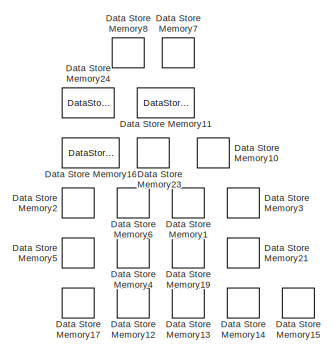
[diagram: root canvas - part 1/2, top right region]
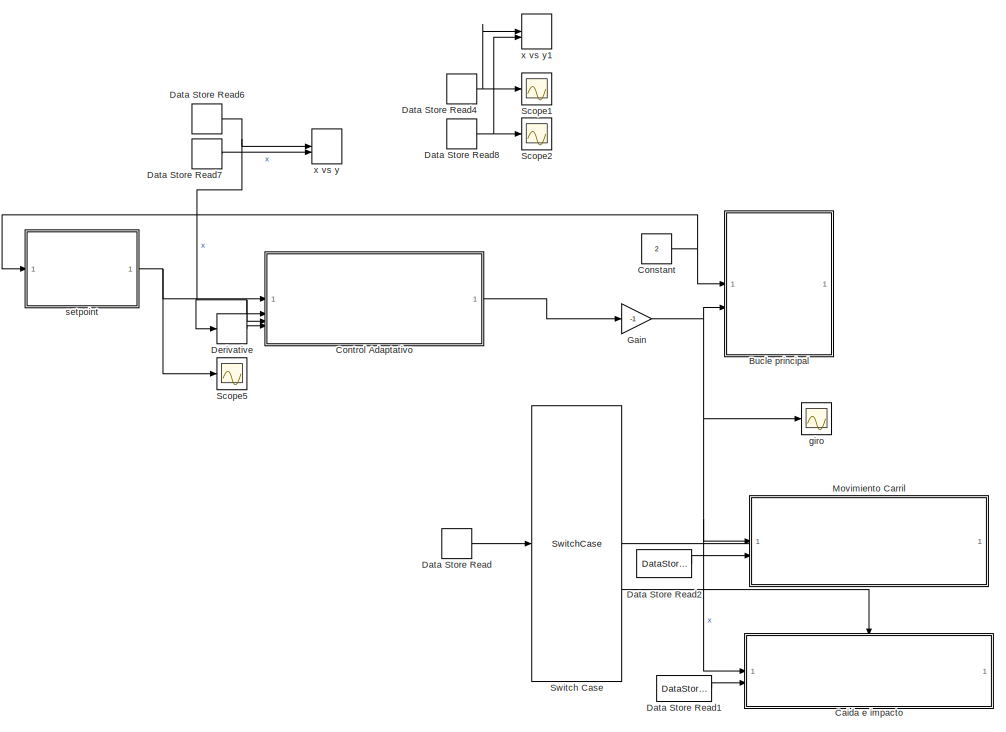
[diagram: root canvas - part 2/2, left side, full height]
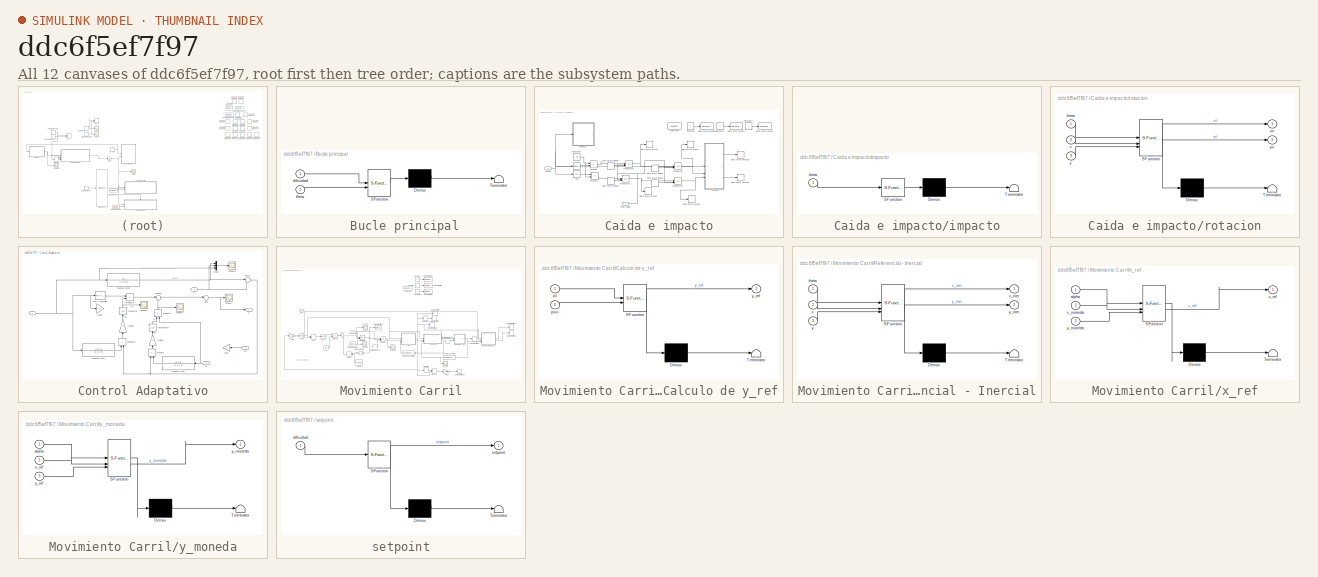
[diagram: thumbnail index - all 12 canvases of the model, root first then tree order]
MODEL slx_ddc6f5ef7f97
KIND model
CONFIG AbsTol = auto
CONFIG EnableMultiTasking = off
CONFIG FixedStep = auto
CONFIG MaxStep = 0.05
CONFIG MinStep = auto
CONFIG RelTol = auto
CONFIG SampleTimeConstraint = Unconstrained
CONFIG SolverName = VariableStepAuto
CONFIG StartTime = 0.0
CONFIG StopTime = 20
BLOCK [SubSystem]  Bucle principal
  ErrorFcn = Stateflow.Translate.translate
  PermitHierarchicalResolution = ExplicitOnly
  SFBlockType = MATLAB Function
  TreatAsAtomicUnit = on
BLOCK [Demux]  Bucle principal/ Demux 
  Outputs = 1
BLOCK [S-Function]  Bucle principal/ SFunction 
  EnableBusSupport = on
  FunctionName = sf_sfun
  PortCounts = [2 1]
  SFcnIsStateOwnerBlock = off
  SFunctionDeploymentMode = off
  Tag = Stateflow S-Function 3
BLOCK [Terminator]  Bucle principal/ Terminator 
BLOCK [Inport]  Bucle principal/dificultad
BLOCK [Inport]  Bucle principal/theta
  Port = 2
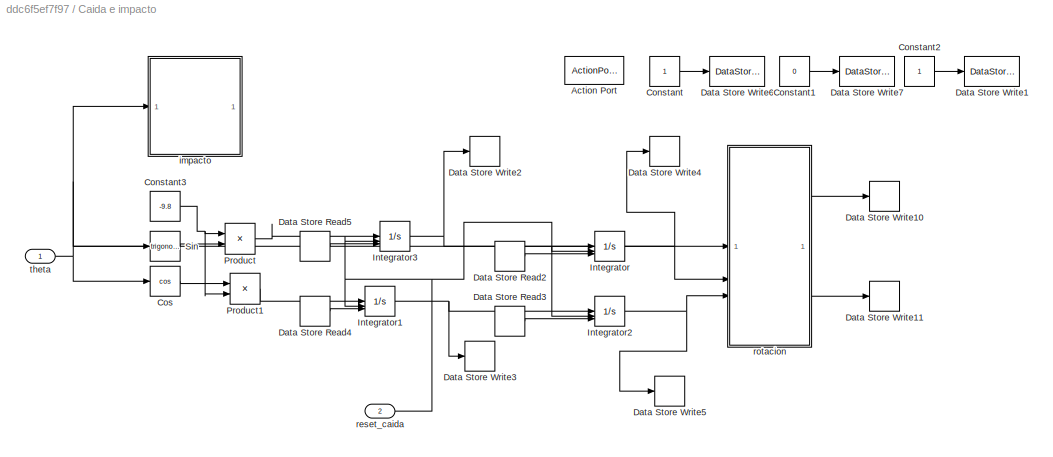
BLOCK [SubSystem] Caida e impacto
  TreatAsAtomicUnit = on
BLOCK [ActionPort] Caida e impacto/Action Port
  ActionPortLabel = case [ 2 ]:
BLOCK [Constant] Caida e impacto/Constant
BLOCK [Constant] Caida e impacto/Constant1
  Value = 0
BLOCK [Constant] Caida e impacto/Constant2
BLOCK [Constant] Caida e impacto/Constant3
  Value = -9.8
BLOCK [Trigonometry] Caida e impacto/Cos
  Operator = cos
BLOCK [DataStoreRead] Caida e impacto/Data Store Read2
  DataStoreName = x_caida
  IndexOptions = Index vector (dialog)
  Indices = 1
  OutputSizes = 1
BLOCK [DataStoreRead] Caida e impacto/Data Store Read3
  DataStoreName = y_caida
  IndexOptions = Index vector (dialog)
  Indices = 1
  OutputSizes = 1
BLOCK [DataStoreRead] Caida e impacto/Data Store Read4
  DataStoreName = dy_caida
  IndexOptions = Index vector (dialog)
  Indices = 1
  OutputSizes = 1
BLOCK [DataStoreRead] Caida e impacto/Data Store Read5
  DataStoreName = dx_caida
  IndexOptions = Index vector (dialog)
  Indices = 1
  OutputSizes = 1
BLOCK [DataStoreWrite] Caida e impacto/Data Store Write1
  DataStoreName = flag_caida
  IndexOptions = Index vector (dialog)
  Indices = 1
  OutputSizes = 1
BLOCK [DataStoreWrite] Caida e impacto/Data Store Write10
  DataStoreName = xo
  IndexOptions = Index vector (dialog)
  Indices = 1
  OutputSizes = 1
BLOCK [DataStoreWrite] Caida e impacto/Data Store Write11
  DataStoreName = yo
  IndexOptions = Index vector (dialog)
  Indices = 1
  OutputSizes = 1
BLOCK [DataStoreWrite] Caida e impacto/Data Store Write2
  DataStoreName = dx
  IndexOptions = Index vector (dialog)
  Indices = 1
  OutputSizes = 1
BLOCK [DataStoreWrite] Caida e impacto/Data Store Write3
  DataStoreName = dy
  IndexOptions = Index vector (dialog)
  Indices = 1
  OutputSizes = 1
BLOCK [DataStoreWrite] Caida e impacto/Data Store Write4
  DataStoreName = x
  IndexOptions = Index vector (dialog)
  Indices = 1
  OutputSizes = 1
BLOCK [DataStoreWrite] Caida e impacto/Data Store Write5
  DataStoreName = y
  IndexOptions = Index vector (dialog)
  Indices = 1
  OutputSizes = 1
BLOCK [DataStoreWrite] Caida e impacto/Data Store Write6
  DataStoreName = reset_caida
  IndexOptions = Index vector (dialog)
  Indices = 1
  OutputSizes = 1
BLOCK [DataStoreWrite] Caida e impacto/Data Store Write7
  DataStoreName = reset_carril
  IndexOptions = Index vector (dialog)
  Indices = 1
  OutputSizes = 1
BLOCK [Integrator] Caida e impacto/Integrator
  ExternalReset = falling
  InitialConditionSource = external
BLOCK [Integrator] Caida e impacto/Integrator1
  ExternalReset = falling
  InitialConditionSource = external
BLOCK [Integrator] Caida e impacto/Integrator2
  ExternalReset = falling
  InitialConditionSource = external
BLOCK [Integrator] Caida e impacto/Integrator3
  ExternalReset = falling
  InitialConditionSource = external
BLOCK [Product] Caida e impacto/Product
BLOCK [Product] Caida e impacto/Product1
BLOCK [Trigonometry] Caida e impacto/Sin
  NameLocation = left
BLOCK [SubSystem] Caida e impacto/impacto
  ErrorFcn = Stateflow.Translate.translate
  PermitHierarchicalResolution = ExplicitOnly
  SFBlockType = MATLAB Function
  TreatAsAtomicUnit = on
BLOCK [Demux] Caida e impacto/impacto/ Demux 
  Outputs = 1
BLOCK [S-Function] Caida e impacto/impacto/ SFunction 
  EnableBusSupport = on
  FunctionName = sf_sfun
  PortCounts = [1 1]
  SFcnIsStateOwnerBlock = off
  SFunctionDeploymentMode = off
  Tag = Stateflow S-Function 6
BLOCK [Terminator] Caida e impacto/impacto/ Terminator 
BLOCK [Inport] Caida e impacto/impacto/theta
BLOCK [Inport] Caida e impacto/reset_caida
  Port = 2
BLOCK [SubSystem] Caida e impacto/rotacion
  ErrorFcn = Stateflow.Translate.translate
  PermitHierarchicalResolution = ExplicitOnly
  SFBlockType = MATLAB Function
  TreatAsAtomicUnit = on
BLOCK [Demux] Caida e impacto/rotacion/ Demux 
  Outputs = 1
BLOCK [S-Function] Caida e impacto/rotacion/ SFunction 
  EnableBusSupport = on
  FunctionName = sf_sfun
  PortCounts = [3 3]
  SFcnIsStateOwnerBlock = off
  SFunctionDeploymentMode = off
  Tag = Stateflow S-Function 7
BLOCK [Terminator] Caida e impacto/rotacion/ Terminator 
BLOCK [Inport] Caida e impacto/rotacion/theta
BLOCK [Inport] Caida e impacto/rotacion/x
  Port = 2
BLOCK [Outport] Caida e impacto/rotacion/xo
BLOCK [Inport] Caida e impacto/rotacion/y
  Port = 3
BLOCK [Outport] Caida e impacto/rotacion/yo
  Port = 2
BLOCK [Inport] Caida e impacto/theta
BLOCK [Constant] Constant
  Value = 2
BLOCK [SubSystem] Control Adaptativo
BLOCK [Gain] Control Adaptativo/Gain
  NameLocation = top
BLOCK [Gain] Control Adaptativo/Gain1
BLOCK [Gain] Control Adaptativo/Gain16
  Gain = -1
  NameLocation = right
BLOCK [Gain] Control Adaptativo/Gain17
  NameLocation = right
BLOCK [Inport] Control Adaptativo/In4
  NameLocation = top
  Port = 4
BLOCK [Integrator] Control Adaptativo/Integrator
  InitialCondition = 1
  NameLocation = right
BLOCK [Integrator] Control Adaptativo/Integrator4
  InitialCondition = 1
  NameLocation = right
BLOCK [Mux] Control Adaptativo/Mux5
  DisplayOption = bar
  Inputs = 3
BLOCK [Reference] Control Adaptativo/PID Controller  REF=slpidlib/PID Controller
  LibrarySourceBlock = simulink/Continuous/PID Controller
  SourceBlock = slpidlib/PID Controller
  SourceType = PID 1dof
BLOCK [Product] Control Adaptativo/Product
  NameLocation = right
BLOCK [Product] Control Adaptativo/Product1
  NameLocation = right
BLOCK [Product] Control Adaptativo/Product2
  NameLocation = right
BLOCK [Product] Control Adaptativo/Product3
BLOCK [Scope] Control Adaptativo/Scope21
  Floating = off
  NumInputPorts = 1
  ScopeSpecificationString = Simulink.scopes.TimeScopeBlockCfg('CurrentConfiguration', extmgr.ConfigurationSet(extmgr.Configuration('Core','General UI',true),extmgr.Configuration('Core','Source UI',true),extmgr.Configuration('Sources','WiredSimulink',true,'DataLoggingVariableName','ScopeData5'),extmgr.Configuration('Visuals','Time Domain',true,'SerializedDisplays',{struct('MinYLimReal','0.99977','MaxYLimReal','1.00207','YLabe...<+1407ch>
BLOCK [Scope] Control Adaptativo/Scope22
  Floating = off
  NumInputPorts = 1
  ScopeSpecificationString = Simulink.scopes.TimeScopeBlockCfg('CurrentConfiguration', extmgr.ConfigurationSet(extmgr.Configuration('Core','General UI',true),extmgr.Configuration('Core','Source UI',true),extmgr.Configuration('Sources','WiredSimulink',true,'DataLoggingVariableName','ScopeData6'),extmgr.Configuration('Visuals','Time Domain',true,'SerializedDisplays',{struct('MinYLimReal','-0.16882','MaxYLimReal','0.26609','YLab...<+1434ch>
BLOCK [Scope] Control Adaptativo/Scope34
  Floating = off
  NumInputPorts = 1
  ScopeSpecificationString = Simulink.scopes.TimeScopeBlockCfg('CurrentConfiguration', extmgr.ConfigurationSet(extmgr.Configuration('Core','General UI',true),extmgr.Configuration('Core','Source UI',true),extmgr.Configuration('Sources','WiredSimulink',true,'DataLoggingVariableName','ScopeData18'),extmgr.Configuration('Visuals','Time Domain',true,'SerializedDisplays',{struct('MinYLimReal','-0.50801','MaxYLimReal','0.51105','YLa...<+1520ch>
BLOCK [Scope] Control Adaptativo/Scope4
  Floating = off
  NumInputPorts = 1
  ScopeSpecificationString = Simulink.scopes.TimeScopeBlockCfg('CurrentConfiguration', extmgr.ConfigurationSet(extmgr.Configuration('Core','General UI',true),extmgr.Configuration('Core','Source UI',true),extmgr.Configuration('Sources','WiredSimulink',true,'DataLoggingVariableName','ScopeData2'),extmgr.Configuration('Visuals','Time Domain',true,'SerializedDisplays',{struct('MinYLimReal','-0.31289','MaxYLimReal','0.22232','YLab...<+1442ch>
BLOCK [Sum] Control Adaptativo/Sum
  Inputs = |+-
BLOCK [Sum] Control Adaptativo/Sum2
  Inputs = |-+
BLOCK [Sum] Control Adaptativo/Sum20
  Inputs = |+-
BLOCK [TransferFcn] Control Adaptativo/Transfer Fcn1
  Denominator = [1 3.2 4]
  Numerator = [3.2 4]
BLOCK [TransferFcn] Control Adaptativo/Transfer Fcn2
  Denominator = [1 3.2 4]
  NameLocation = top
  Numerator = [3.2 4]
BLOCK [TransferFcn] Control Adaptativo/Transfer Fcn3
  Denominator = [1 3.2 4]
  Numerator = [4]
BLOCK [Outport] Control Adaptativo/k
BLOCK [Inport] Control Adaptativo/r
BLOCK [Inport] Control Adaptativo/x
  Port = 2
BLOCK [Inport] Control Adaptativo/x1
  NameLocation = top
  Port = 3
BLOCK [DataStoreMemory] Data Store Memory1
  DataStoreName = dx
  OutDataTypeStr = double
  ReadBeforeWriteMsg = warning
  ShowAdditionalParam = off
  SignalType = real
  WriteAfterReadMsg = warning
  WriteAfterWriteMsg = warning
BLOCK [DataStoreMemory] Data Store Memory10
  DataStoreName = y_impacto
  OutDataTypeStr = double
  ReadBeforeWriteMsg = warning
  ShowAdditionalParam = off
  SignalType = real
  WriteAfterReadMsg = warning
  WriteAfterWriteMsg = warning
BLOCK [DataStoreMemory] Data Store Memory11
  DataStoreName = reset_caida
  OutDataTypeStr = double
  ReadBeforeWriteMsg = warning
  ShowAdditionalParam = off
  SignalType = real
  WriteAfterReadMsg = warning
  WriteAfterWriteMsg = warning
BLOCK [DataStoreMemory] Data Store Memory12
  DataStoreName = x_caida
  OutDataTypeStr = double
  ReadBeforeWriteMsg = warning
  ShowAdditionalParam = off
  SignalType = real
  WriteAfterReadMsg = warning
  WriteAfterWriteMsg = warning
BLOCK [DataStoreMemory] Data Store Memory13
  DataStoreName = y_caida
  OutDataTypeStr = double
  ReadBeforeWriteMsg = warning
  ShowAdditionalParam = off
  SignalType = real
  WriteAfterReadMsg = warning
  WriteAfterWriteMsg = warning
BLOCK [DataStoreMemory] Data Store Memory14
  DataStoreName = dx_caida
  OutDataTypeStr = double
  ReadBeforeWriteMsg = warning
  ShowAdditionalParam = off
  SignalType = real
  WriteAfterReadMsg = warning
  WriteAfterWriteMsg = warning
BLOCK [DataStoreMemory] Data Store Memory15
  DataStoreName = dy_caida
  OutDataTypeStr = double
  ReadBeforeWriteMsg = warning
  ShowAdditionalParam = off
  SignalType = real
  WriteAfterReadMsg = warning
  WriteAfterWriteMsg = warning
BLOCK [DataStoreMemory] Data Store Memory16
  DataStoreName = reset_carril
  OutDataTypeStr = double
  ReadBeforeWriteMsg = warning
  ShowAdditionalParam = off
  SignalType = real
  WriteAfterReadMsg = warning
  WriteAfterWriteMsg = warning
BLOCK [DataStoreMemory] Data Store Memory17
  DataStoreName = x_carril
  InitialValue = -0.11
  OutDataTypeStr = double
  ReadBeforeWriteMsg = warning
  ShowAdditionalParam = off
  SignalType = real
  WriteAfterReadMsg = warning
  WriteAfterWriteMsg = warning
BLOCK [DataStoreMemory] Data Store Memory19
  DataStoreName = dx_carril
  OutDataTypeStr = double
  ReadBeforeWriteMsg = warning
  ShowAdditionalParam = off
  SignalType = real
  WriteAfterReadMsg = warning
  WriteAfterWriteMsg = warning
BLOCK [DataStoreMemory] Data Store Memory2
  DataStoreName = x
  InitialValue = -0.11
  OutDataTypeStr = double
  ReadBeforeWriteMsg = warning
  ShowAdditionalParam = off
  SignalType = real
  WriteAfterReadMsg = warning
  WriteAfterWriteMsg = warning
BLOCK [DataStoreMemory] Data Store Memory21
  DataStoreName = dy_carril
  OutDataTypeStr = double
  ReadBeforeWriteMsg = warning
  ShowAdditionalParam = off
  SignalType = real
  WriteAfterReadMsg = warning
  WriteAfterWriteMsg = warning
BLOCK [DataStoreMemory] Data Store Memory23
  DataStoreName = x_impacto
  OutDataTypeStr = double
  ReadBeforeWriteMsg = warning
  ShowAdditionalParam = off
  SignalType = real
  WriteAfterReadMsg = warning
  WriteAfterWriteMsg = warning
BLOCK [DataStoreMemory] Data Store Memory24
  DataStoreName = flag_caida
  OutDataTypeStr = double
  ReadBeforeWriteMsg = warning
  ShowAdditionalParam = off
  SignalType = real
  WriteAfterReadMsg = warning
  WriteAfterWriteMsg = warning
BLOCK [DataStoreMemory] Data Store Memory3
  DataStoreName = dy
  OutDataTypeStr = double
  ReadBeforeWriteMsg = warning
  ShowAdditionalParam = off
  SignalType = real
  WriteAfterReadMsg = warning
  WriteAfterWriteMsg = warning
BLOCK [DataStoreMemory] Data Store Memory4
  DataStoreName = yo
  InitialValue = 0.1092
  OutDataTypeStr = double
  ReadBeforeWriteMsg = warning
  ShowAdditionalParam = off
  SignalType = real
  WriteAfterReadMsg = warning
  WriteAfterWriteMsg = warning
BLOCK [DataStoreMemory] Data Store Memory5
  DataStoreName = xo
  InitialValue = -0.1
  OutDataTypeStr = double
  ReadBeforeWriteMsg = warning
  ShowAdditionalParam = off
  SignalType = real
  WriteAfterReadMsg = warning
  WriteAfterWriteMsg = warning
BLOCK [DataStoreMemory] Data Store Memory6
  DataStoreName = y
  InitialValue = 0.106
  OutDataTypeStr = double
  ReadBeforeWriteMsg = warning
  ShowAdditionalParam = off
  SignalType = real
  WriteAfterReadMsg = warning
  WriteAfterWriteMsg = warning
BLOCK [DataStoreMemory] Data Store Memory7
  DataStoreName = modo
  InitialValue = 1
  OutDataTypeStr = double
  ReadBeforeWriteMsg = warning
  ShowAdditionalParam = off
  SignalType = real
  WriteAfterReadMsg = warning
  WriteAfterWriteMsg = warning
BLOCK [DataStoreMemory] Data Store Memory8
  DataStoreName = carril
  InitialValue = 1
  OutDataTypeStr = double
  ReadBeforeWriteMsg = warning
  ShowAdditionalParam = off
  SignalType = real
  WriteAfterReadMsg = warning
  WriteAfterWriteMsg = warning
BLOCK [DataStoreRead] Data Store Read
  DataStoreName = modo
  IndexOptions = Index vector (dialog)
  Indices = 1
  OutputSizes = 1
BLOCK [DataStoreRead] Data Store Read1
  DataStoreName = reset_caida
  IndexOptions = Index vector (dialog)
  Indices = 1
  OutputSizes = 1
BLOCK [DataStoreRead] Data Store Read2
  DataStoreName = reset_carril
  IndexOptions = Index vector (dialog)
  Indices = 1
  OutputSizes = 1
BLOCK [DataStoreRead] Data Store Read4
  DataStoreName = xo
  IndexOptions = Index vector (dialog)
  Indices = 1
  OutputSizes = 1
BLOCK [DataStoreRead] Data Store Read6
  DataStoreName = x
  IndexOptions = Index vector (dialog)
  Indices = 1
  OutputSizes = 1
BLOCK [DataStoreRead] Data Store Read7
  DataStoreName = y
  IndexOptions = Index vector (dialog)
  Indices = 1
  OutputSizes = 1
BLOCK [DataStoreRead] Data Store Read8
  DataStoreName = yo
  IndexOptions = Index vector (dialog)
  Indices = 1
  OutputSizes = 1
BLOCK [Derivative] Derivative
BLOCK [Gain] Gain
  Gain = -1
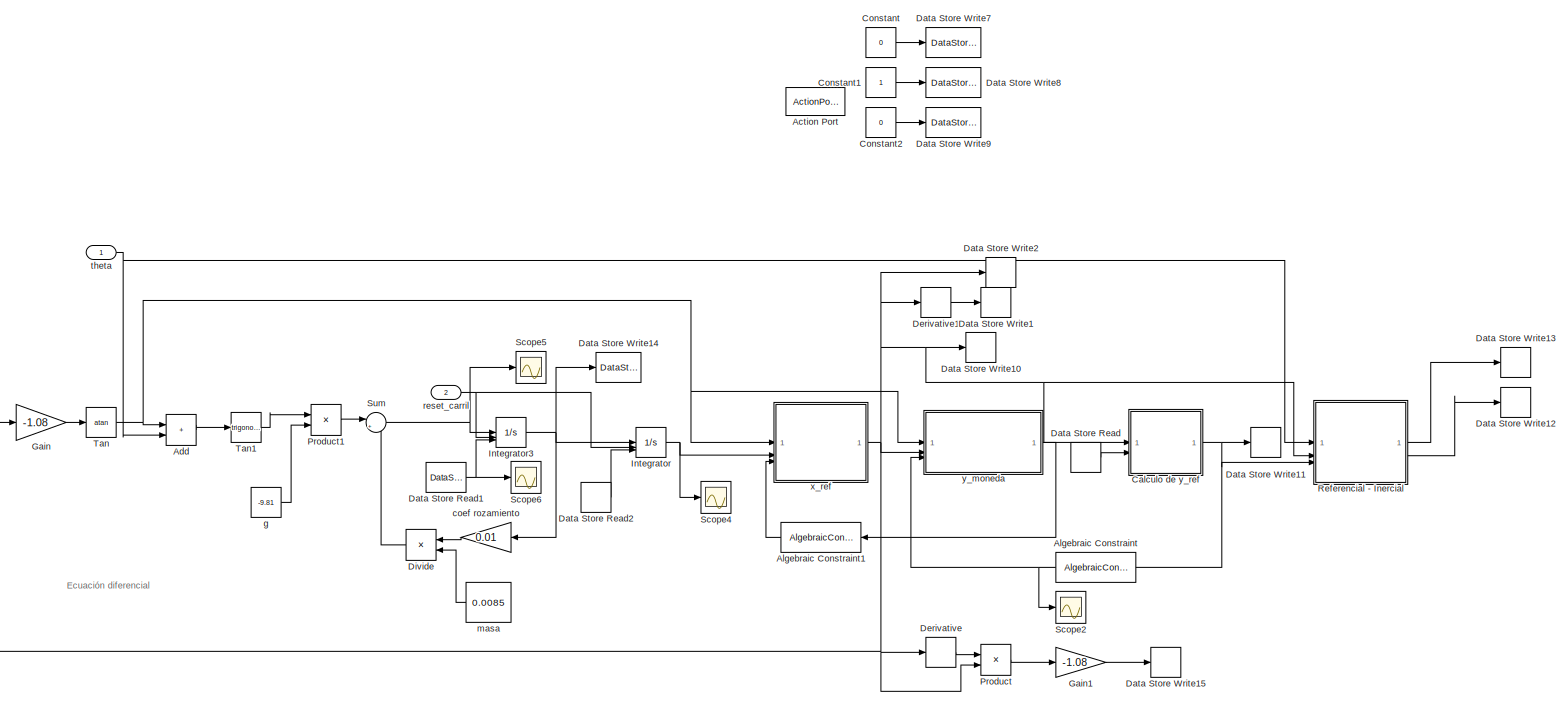
[diagram: Movimiento Carril - part 1/1, most of the canvas]
BLOCK [SubSystem] Movimiento Carril
  TreatAsAtomicUnit = on
BLOCK [ActionPort] Movimiento Carril/Action Port
  ActionPortLabel = case [ 1 ]:
BLOCK [Sum] Movimiento Carril/Add
  IconShape = rectangular
BLOCK [AlgebraicConstraint] Movimiento Carril/Algebraic Constraint
  Constraint = f(z) = z
  NameLocation = top
BLOCK [AlgebraicConstraint] Movimiento Carril/Algebraic Constraint1
  Constraint = f(z) = z
  NameLocation = top
BLOCK [SubSystem] Movimiento Carril/Calculo de y_ref
  ErrorFcn = Stateflow.Translate.translate
  PermitHierarchicalResolution = ExplicitOnly
  SFBlockType = MATLAB Function
  TreatAsAtomicUnit = on
BLOCK [Demux] Movimiento Carril/Calculo de y_ref/ Demux 
  Outputs = 1
BLOCK [S-Function] Movimiento Carril/Calculo de y_ref/ SFunction 
  EnableBusSupport = on
  FunctionName = sf_sfun
  PortCounts = [2 2]
  SFcnIsStateOwnerBlock = off
  SFunctionDeploymentMode = off
  Tag = Stateflow S-Function 8
BLOCK [Terminator] Movimiento Carril/Calculo de y_ref/ Terminator 
BLOCK [Inport] Movimiento Carril/Calculo de y_ref/piso
  Port = 2
BLOCK [Inport] Movimiento Carril/Calculo de y_ref/x0
BLOCK [Outport] Movimiento Carril/Calculo de y_ref/y_ref
BLOCK [Constant] Movimiento Carril/Constant
  Value = 0
BLOCK [Constant] Movimiento Carril/Constant1
BLOCK [Constant] Movimiento Carril/Constant2
  Value = 0
BLOCK [DataStoreRead] Movimiento Carril/Data Store Read
  DataStoreName = carril
  IndexOptions = Index vector (dialog)
  Indices = 1
  OutputSizes = 1
BLOCK [DataStoreRead] Movimiento Carril/Data Store Read1
  DataStoreName = dx_carril
  IndexOptions = Index vector (dialog)
  Indices = 1
  OutputSizes = 1
BLOCK [DataStoreRead] Movimiento Carril/Data Store Read2
  DataStoreName = x_carril
  IndexOptions = Index vector (dialog)
  Indices = 1
  OutputSizes = 1
BLOCK [DataStoreWrite] Movimiento Carril/Data Store Write1
  DataStoreName = dx_carril
  IndexOptions = Index vector (dialog)
  Indices = 1
  OutputSizes = 1
BLOCK [DataStoreWrite] Movimiento Carril/Data Store Write10
  DataStoreName = x
  IndexOptions = Index vector (dialog)
  Indices = 1
  OutputSizes = 1
BLOCK [DataStoreWrite] Movimiento Carril/Data Store Write11
  DataStoreName = y
  IndexOptions = Index vector (dialog)
  Indices = 1
  OutputSizes = 1
BLOCK [DataStoreWrite] Movimiento Carril/Data Store Write12
  DataStoreName = yo
  IndexOptions = Index vector (dialog)
  Indices = 1
  OutputSizes = 1
BLOCK [DataStoreWrite] Movimiento Carril/Data Store Write13
  DataStoreName = xo
  IndexOptions = Index vector (dialog)
  Indices = 1
  OutputSizes = 1
BLOCK [DataStoreWrite] Movimiento Carril/Data Store Write14
  DataStoreName = dx
  IndexOptions = Index vector (dialog)
  Indices = 1
  OutputSizes = 1
BLOCK [DataStoreWrite] Movimiento Carril/Data Store Write15
  DataStoreName = dy
  IndexOptions = Index vector (dialog)
  Indices = 1
  OutputSizes = 1
BLOCK [DataStoreWrite] Movimiento Carril/Data Store Write2
  DataStoreName = x_carril
  IndexOptions = Index vector (dialog)
  Indices = 1
  OutputSizes = 1
BLOCK [DataStoreWrite] Movimiento Carril/Data Store Write7
  DataStoreName = reset_caida
  IndexOptions = Index vector (dialog)
  Indices = 1
  OutputSizes = 1
BLOCK [DataStoreWrite] Movimiento Carril/Data Store Write8
  DataStoreName = reset_carril
  IndexOptions = Index vector (dialog)
  Indices = 1
  OutputSizes = 1
BLOCK [DataStoreWrite] Movimiento Carril/Data Store Write9
  DataStoreName = flag_caida
  IndexOptions = Index vector (dialog)
  Indices = 1
  OutputSizes = 1
BLOCK [Derivative] Movimiento Carril/Derivative
BLOCK [Derivative] Movimiento Carril/Derivative1
BLOCK [Product] Movimiento Carril/Divide
  Inputs = */
  NameLocation = top
BLOCK [Gain] Movimiento Carril/Gain
  Gain = -1.08
BLOCK [Gain] Movimiento Carril/Gain1
  Gain = -1.08
BLOCK [Integrator] Movimiento Carril/Integrator
  ExternalReset = falling
  InitialConditionSource = external
BLOCK [Integrator] Movimiento Carril/Integrator3
  ExternalReset = falling
  InitialConditionSource = external
BLOCK [Product] Movimiento Carril/Product
BLOCK [Product] Movimiento Carril/Product1
BLOCK [SubSystem] Movimiento Carril/Referencial - Inercial
  ErrorFcn = Stateflow.Translate.translate
  PermitHierarchicalResolution = ExplicitOnly
  SFBlockType = MATLAB Function
  TreatAsAtomicUnit = on
BLOCK [Demux] Movimiento Carril/Referencial - Inercial/ Demux 
  Outputs = 1
BLOCK [S-Function] Movimiento Carril/Referencial - Inercial/ SFunction 
  EnableBusSupport = on
  FunctionName = sf_sfun
  PortCounts = [3 3]
  SFcnIsStateOwnerBlock = off
  SFunctionDeploymentMode = off
  Tag = Stateflow S-Function 10
BLOCK [Terminator] Movimiento Carril/Referencial - Inercial/ Terminator 
BLOCK [Inport] Movimiento Carril/Referencial - Inercial/theta
BLOCK [Inport] Movimiento Carril/Referencial - Inercial/x
  Port = 2
BLOCK [Outport] Movimiento Carril/Referencial - Inercial/x_iner
BLOCK [Inport] Movimiento Carril/Referencial - Inercial/y
  Port = 3
BLOCK [Outport] Movimiento Carril/Referencial - Inercial/y_iner
  Port = 2
BLOCK [Scope] Movimiento Carril/Scope2
  Floating = off
  NumInputPorts = 1
  ScopeSpecificationString = Simulink.scopes.TimeScopeBlockCfg('CurrentConfiguration', extmgr.ConfigurationSet(extmgr.Configuration('Core','General UI',true),extmgr.Configuration('Core','Source UI',true),extmgr.Configuration('Sources','WiredSimulink',true,'DataLoggingVariableName','ScopeData5'),extmgr.Configuration('Visuals','Time Domain',true,'SerializedDisplays',{struct('MinYLimReal','0.03829','MaxYLimReal','0.12275','YLabe...<+1429ch>
BLOCK [Scope] Movimiento Carril/Scope4
  Floating = off
  NumInputPorts = 1
  ScopeSpecificationString = Simulink.scopes.TimeScopeBlockCfg('CurrentConfiguration', extmgr.ConfigurationSet(extmgr.Configuration('Core','General UI',true),extmgr.Configuration('Core','Source UI',true),extmgr.Configuration('Sources','WiredSimulink',true,'DataLoggingVariableName','ScopeData7'),extmgr.Configuration('Visuals','Time Domain',true,'SerializedDisplays',{struct('MinYLimReal','-0.16846','MaxYLimReal','0.19367','YLab...<+1421ch>
BLOCK [Scope] Movimiento Carril/Scope5
  Floating = off
  NumInputPorts = 1
  ScopeSpecificationString = Simulink.scopes.TimeScopeBlockCfg('CurrentConfiguration', extmgr.ConfigurationSet(extmgr.Configuration('Core','General UI',true),extmgr.Configuration('Core','Source UI',true),extmgr.Configuration('Sources','WiredSimulink',true,'DataLoggingVariableName','ScopeData2'),extmgr.Configuration('Visuals','Time Domain',true,'SerializedDisplays',{struct('MinYLimReal','0.09557','MaxYLimReal','1.54423','YLabe...<+1414ch>
BLOCK [Scope] Movimiento Carril/Scope6
  Floating = off
  NumInputPorts = 1
  ScopeSpecificationString = Simulink.scopes.TimeScopeBlockCfg('CurrentConfiguration', extmgr.ConfigurationSet(extmgr.Configuration('Core','General UI',true),extmgr.Configuration('Core','Source UI',true),extmgr.Configuration('Sources','WiredSimulink',true,'DataLoggingVariableName','ScopeData3'),extmgr.Configuration('Visuals','Time Domain',true,'SerializedDisplays',{struct('MinYLimReal','-0.0942','MaxYLimReal','0.84778','YLabe...<+1427ch>
BLOCK [Sum] Movimiento Carril/Sum
  Inputs = |+-
BLOCK [Trigonometry] Movimiento Carril/Tan
  Operator = atan
BLOCK [Trigonometry] Movimiento Carril/Tan1
BLOCK [Gain] Movimiento Carril/coef rozamiento
  Gain = 0.01
  NameLocation = top
BLOCK [Constant] Movimiento Carril/g
  Value = -9.81
BLOCK [Constant] Movimiento Carril/masa
  NameLocation = top
  Value = 0.0085
BLOCK [Inport] Movimiento Carril/reset_carril
  Port = 2
BLOCK [Inport] Movimiento Carril/theta
BLOCK [SubSystem] Movimiento Carril/x_ref
  ErrorFcn = Stateflow.Translate.translate
  PermitHierarchicalResolution = ExplicitOnly
  SFBlockType = MATLAB Function
  TreatAsAtomicUnit = on
BLOCK [Demux] Movimiento Carril/x_ref/ Demux 
  Outputs = 1
BLOCK [S-Function] Movimiento Carril/x_ref/ SFunction 
  EnableBusSupport = on
  FunctionName = sf_sfun
  PortCounts = [3 2]
  SFcnIsStateOwnerBlock = off
  SFunctionDeploymentMode = off
  Tag = Stateflow S-Function 9
BLOCK [Terminator] Movimiento Carril/x_ref/ Terminator 
BLOCK [Inport] Movimiento Carril/x_ref/alpha
BLOCK [Inport] Movimiento Carril/x_ref/x_moneda
  Port = 2
BLOCK [Outport] Movimiento Carril/x_ref/x_ref
BLOCK [Inport] Movimiento Carril/x_ref/y_moneda
  Port = 3
BLOCK [SubSystem] Movimiento Carril/y_moneda
  ErrorFcn = Stateflow.Translate.translate
  PermitHierarchicalResolution = ExplicitOnly
  SFBlockType = MATLAB Function
  TreatAsAtomicUnit = on
BLOCK [Demux] Movimiento Carril/y_moneda/ Demux 
  Outputs = 1
BLOCK [S-Function] Movimiento Carril/y_moneda/ SFunction 
  EnableBusSupport = on
  FunctionName = sf_sfun
  PortCounts = [3 2]
  SFcnIsStateOwnerBlock = off
  SFunctionDeploymentMode = off
  Tag = Stateflow S-Function 2
BLOCK [Terminator] Movimiento Carril/y_moneda/ Terminator 
BLOCK [Inport] Movimiento Carril/y_moneda/alpha
BLOCK [Inport] Movimiento Carril/y_moneda/x_ref
  Port = 2
BLOCK [Outport] Movimiento Carril/y_moneda/y_moneda
BLOCK [Inport] Movimiento Carril/y_moneda/y_ref
  Port = 3
BLOCK [Scope] Scope1
  Floating = off
  NumInputPorts = 1
  ScopeSpecificationString = Simulink.scopes.TimeScopeBlockCfg('CurrentConfiguration', extmgr.ConfigurationSet(extmgr.Configuration('Core','General UI',true),extmgr.Configuration('Core','Source UI',true),extmgr.Configuration('Sources','WiredSimulink',true,'DataLoggingVariableName','ScopeData2','DataLogging',true,'DataLoggingSaveFormat','Array'),extmgr.Configuration('Visuals','Time Domain',true,'SerializedDisplays',{struct('Mi...<+1476ch>
BLOCK [Scope] Scope2
  Floating = off
  NameLocation = left
  NumInputPorts = 1
  ScopeSpecificationString = Simulink.scopes.TimeScopeBlockCfg('CurrentConfiguration', extmgr.ConfigurationSet(extmgr.Configuration('Core','General UI',true),extmgr.Configuration('Core','Source UI',true),extmgr.Configuration('Sources','WiredSimulink',true,'DataLogging',true,'DataLoggingSaveFormat','Array','DataLoggingVariableName','ScopeData3'),extmgr.Configuration('Visuals','Time Domain',true,'SerializedDisplays',{struct('Mi...<+1493ch>
BLOCK [Scope] Scope5
  Floating = off
  NumInputPorts = 1
  ScopeSpecificationString = Simulink.scopes.TimeScopeBlockCfg('CurrentConfiguration', extmgr.ConfigurationSet(extmgr.Configuration('Core','General UI',true),extmgr.Configuration('Core','Source UI',true),extmgr.Configuration('Sources','WiredSimulink',true,'DataLoggingVariableName','ScopeData6'),extmgr.Configuration('Visuals','Time Domain',true,'SerializedDisplays',{struct('MinYLimReal','-0.06129','MaxYLimReal','0.07582','YLab...<+1367ch>
BLOCK [SwitchCase] Switch Case
  CaseConditions = {1,2}
  ShowDefaultCase = off
BLOCK [Scope] giro
  Floating = off
  NumInputPorts = 1
  ScopeSpecificationString = Simulink.scopes.TimeScopeBlockCfg('CurrentConfiguration', extmgr.ConfigurationSet(extmgr.Configuration('Core','General UI',true),extmgr.Configuration('Core','Source UI',true),extmgr.Configuration('Sources','WiredSimulink',true,'DataLogging',true,'DataLoggingSaveFormat','Array','DataLoggingVariableName','ScopeData7'),extmgr.Configuration('Visuals','Time Domain',true,'SerializedDisplays',{struct('Mi...<+1498ch>
BLOCK [SubSystem] setpoint
  ErrorFcn = Stateflow.Translate.translate
  PermitHierarchicalResolution = ExplicitOnly
  SFBlockType = MATLAB Function
  TreatAsAtomicUnit = on
BLOCK [Demux] setpoint/ Demux 
  Outputs = 1
BLOCK [S-Function] setpoint/ SFunction 
  EnableBusSupport = on
  FunctionName = sf_sfun
  PortCounts = [1 2]
  SFcnIsStateOwnerBlock = off
  SFunctionDeploymentMode = off
  Tag = Stateflow S-Function 13
BLOCK [Terminator] setpoint/ Terminator 
BLOCK [Inport] setpoint/dificultad
BLOCK [Outport] setpoint/setpoint
BLOCK [Record] x vs y
  CompatibilityTag = XY
  FileSettingsInternal = {"entries":[{"content":{"excelSettings":{"content":{},"type":"Streamout.ExcelSettings"}},"type":"Streamout.FileSettingStorage","uuid":""}],"packageUris":["http:\/\/schema.mathworks.com\/mf0\/streamout_blocks\/R2020a"],"version":"1.0"}
  Layout = [1 1]
  SignalsInternal = {"entries":[{"content":{"signals":[{"content":{"blockPath":[],"dimensions":[1],"domain":"","lineColor":"#a2142f","plots":[1],"port":1,"sid":[""],"signalID":25020,"signalName":"x"},"type":"RecordBlkView.Signal","uuid":""},{"content":{"blockPath":[],"dimensions":[1],"domain":"","lineColor":"#139fff","plots":[1],"port":2,"sid":[""],"signalID":25024,"signalName":"x"},"type":"RecordBlkView.Signal","uui...<+152ch>
  VisualizationBindings = {"xyplotplugin":{"info":[{"series":[{"bindingParametersList":[{"parameter":"X-Axis","signalID":25020,"signalName":"x"},{"parameter":"Y-Axis","signalID":25024,"signalName":"x"}],"seriesID":13625}],"subplotID":1}]}}
  st = -1
BLOCK [Record] x vs y1
  CompatibilityTag = XY
  FileSettingsInternal = {"entries":[{"content":{"excelSettings":{"content":{},"type":"Streamout.ExcelSettings"}},"type":"Streamout.FileSettingStorage","uuid":""}],"packageUris":["http:\/\/schema.mathworks.com\/mf0\/streamout_blocks\/R2020a"],"version":"1.0"}
  Layout = [1 1]
  SignalsInternal = {"entries":[{"content":{"signals":[{"content":{"blockPath":[],"dimensions":[1],"domain":"","lineColor":"#a2142f","plots":[1],"port":1,"sid":[""],"signalID":25028,"signalName":"Data Store\nRead4"},"type":"RecordBlkView.Signal","uuid":""},{"content":{"blockPath":[],"dimensions":[1],"domain":"","lineColor":"#139fff","plots":[1],"port":2,"sid":[""],"signalID":25032,"signalName":"Data Store\nRead8"},"t...<+184ch>
  VisualizationBindings = {"xyplotplugin":{"info":[{"series":[{"bindingParametersList":[{"parameter":"X-Axis","signalID":25028,"signalName":"Data Store\nRead4"},{"parameter":"Y-Axis","signalID":25032,"signalName":"Data Store\nRead8"}],"seriesID":36668}],"subplotID":1}]}}
  st = -1
ANNOTATION Movimiento Carril: Ecuación diferencial
LINE Caida e impacto/Constant1:1 -> Caida e impacto/Data Store Write7:1
LINE Caida e impacto/Constant2:1 -> Caida e impacto/Data Store Write1:1
NET Caida e impacto/Constant3:1 -> Caida e impacto/Product1:2, Caida e impacto/Product:1
LINE Caida e impacto/Constant:1 -> Caida e impacto/Data Store Write6:1
LINE Caida e impacto/Cos:1 -> Caida e impacto/Product1:1
LINE Caida e impacto/Data Store Read2:1 -> Caida e impacto/Integrator:3
LINE Caida e impacto/Data Store Read3:1 -> Caida e impacto/Integrator2:3
LINE Caida e impacto/Data Store Read4:1 -> Caida e impacto/Integrator1:3
LINE Caida e impacto/Data Store Read5:1 -> Caida e impacto/Integrator3:3
NET Caida e impacto/Integrator1:1 -> Caida e impacto/Data Store Write3:1, Caida e impacto/Integrator2:1
NET Caida e impacto/Integrator2:1 -> Caida e impacto/Data Store Write5:1, Caida e impacto/rotacion:3
NET Caida e impacto/Integrator3:1 -> Caida e impacto/Data Store Write2:1, Caida e impacto/Integrator:1
NET Caida e impacto/Integrator:1 -> Caida e impacto/Data Store Write4:1, Caida e impacto/rotacion:2
LINE Caida e impacto/Product1:1 -> Caida e impacto/Integrator1:1
LINE Caida e impacto/Product:1 -> Caida e impacto/Integrator3:1
LINE Caida e impacto/Sin:1 -> Caida e impacto/Product:2
NET Caida e impacto/reset_caida:1 -> Caida e impacto/Integrator1:2, Caida e impacto/Integrator2:2, Caida e impacto/Integrator3:2, Caida e impacto/Integrator:2
LINE Caida e impacto/rotacion:1 -> Caida e impacto/Data Store Write10:1
LINE Caida e impacto/rotacion:2 -> Caida e impacto/Data Store Write11:1
NET Caida e impacto/theta:1 -> Caida e impacto/Cos:1, Caida e impacto/Sin:1, Caida e impacto/impacto:1, Caida e impacto/rotacion:1
NET Constant:1 ->  Bucle principal:1, setpoint:1
LINE Control Adaptativo/Gain16:1 -> Control Adaptativo/Integrator:1
LINE Control Adaptativo/Gain17:1 -> Control Adaptativo/Integrator4:1
LINE Control Adaptativo/In4:1 -> Control Adaptativo/Gain:1
LINE Control Adaptativo/Integrator4:1 -> Control Adaptativo/Product1:1
NET Control Adaptativo/Integrator:1 -> Control Adaptativo/Product3:2, Control Adaptativo/Scope21:1
LINE Control Adaptativo/Mux5:1 -> Control Adaptativo/Scope34:1
LINE Control Adaptativo/PID Controller:1 -> Control Adaptativo/Product3:1
NET Control Adaptativo/Product1:1 -> Control Adaptativo/Scope22:1, Control Adaptativo/Sum20:2
LINE Control Adaptativo/Product2:1 -> Control Adaptativo/Gain16:1
LINE Control Adaptativo/Product3:1 -> Control Adaptativo/Sum20:1
LINE Control Adaptativo/Product:1 -> Control Adaptativo/Gain17:1
LINE Control Adaptativo/Sum20:1 -> Control Adaptativo/Sum:1
NET Control Adaptativo/Sum2:1 -> Control Adaptativo/Product2:2, Control Adaptativo/Product:1
NET Control Adaptativo/Sum:1 -> Control Adaptativo/Scope4:1, Control Adaptativo/k:1
LINE Control Adaptativo/Transfer Fcn1:1 -> Control Adaptativo/Product2:1
LINE Control Adaptativo/Transfer Fcn2:1 -> Control Adaptativo/Product:2
NET Control Adaptativo/Transfer Fcn3:1 -> Control Adaptativo/Mux5:1, Control Adaptativo/Sum2:1
NET Control Adaptativo/r:1 -> Control Adaptativo/Gain1:1, Control Adaptativo/Mux5:3, Control Adaptativo/PID Controller:1, Control Adaptativo/Transfer Fcn1:1, Control Adaptativo/Transfer Fcn3:1
NET Control Adaptativo/x1:1 -> Control Adaptativo/Product1:2, Control Adaptativo/Transfer Fcn2:1
NET Control Adaptativo/x:1 -> Control Adaptativo/Mux5:2, Control Adaptativo/Sum2:2
LINE Control Adaptativo:1 -> Gain:1
LINE Data Store Read1:1 -> Caida e impacto:2
LINE Data Store Read2:1 -> Movimiento Carril:2
NET Data Store Read4:1 -> Scope1:1, x vs y1:1
NET Data Store Read6:1 -> Control Adaptativo:2, Control Adaptativo:3, Derivative:1, x vs y:1
LINE Data Store Read7:1 -> x vs y:2
NET Data Store Read8:1 -> Scope2:1, x vs y1:2
LINE Data Store Read:1 -> Switch Case:1
LINE Derivative:1 -> Control Adaptativo:4
NET Gain:1 ->  Bucle principal:2, Caida e impacto:1, Movimiento Carril:1, giro:1
LINE Movimiento Carril/Add:1 -> Movimiento Carril/Tan1:1
LINE Movimiento Carril/Algebraic Constraint1:1 -> Movimiento Carril/x_ref:3
NET Movimiento Carril/Algebraic Constraint:1 -> Movimiento Carril/Scope2:1, Movimiento Carril/y_moneda:3
NET Movimiento Carril/Calculo de y_ref:1 -> Movimiento Carril/Algebraic Constraint:1, Movimiento Carril/Data Store Write11:1, Movimiento Carril/Referencial - Inercial:3
LINE Movimiento Carril/Constant1:1 -> Movimiento Carril/Data Store Write8:1
LINE Movimiento Carril/Constant2:1 -> Movimiento Carril/Data Store Write9:1
LINE Movimiento Carril/Constant:1 -> Movimiento Carril/Data Store Write7:1
NET Movimiento Carril/Data Store Read1:1 -> Movimiento Carril/Integrator3:3, Movimiento Carril/Scope6:1
LINE Movimiento Carril/Data Store Read2:1 -> Movimiento Carril/Integrator:3
LINE Movimiento Carril/Data Store Read:1 -> Movimiento Carril/Calculo de y_ref:2
LINE Movimiento Carril/Derivative1:1 -> Movimiento Carril/Data Store Write1:1
LINE Movimiento Carril/Derivative:1 -> Movimiento Carril/Product:1
LINE Movimiento Carril/Divide:1 -> Movimiento Carril/Sum:2
LINE Movimiento Carril/Gain1:1 -> Movimiento Carril/Data Store Write15:1
LINE Movimiento Carril/Gain:1 -> Movimiento Carril/Tan:1
NET Movimiento Carril/Integrator3:1 -> Movimiento Carril/Data Store Write14:1, Movimiento Carril/Integrator:1, Movimiento Carril/coef rozamiento:1
NET Movimiento Carril/Integrator:1 -> Movimiento Carril/Scope4:1, Movimiento Carril/x_ref:2
LINE Movimiento Carril/Product1:1 -> Movimiento Carril/Sum:1
LINE Movimiento Carril/Product:1 -> Movimiento Carril/Gain1:1
LINE Movimiento Carril/Referencial - Inercial:1 -> Movimiento Carril/Data Store Write13:1
LINE Movimiento Carril/Referencial - Inercial:2 -> Movimiento Carril/Data Store Write12:1
NET Movimiento Carril/Sum:1 -> Movimiento Carril/Integrator3:1, Movimiento Carril/Scope5:1
LINE Movimiento Carril/Tan1:1 -> Movimiento Carril/Product1:1
NET Movimiento Carril/Tan:1 -> Movimiento Carril/Add:1, Movimiento Carril/x_ref:1, Movimiento Carril/y_moneda:1
LINE Movimiento Carril/coef rozamiento:1 -> Movimiento Carril/Divide:1
LINE Movimiento Carril/g:1 -> Movimiento Carril/Product1:2
LINE Movimiento Carril/masa:1 -> Movimiento Carril/Divide:2
NET Movimiento Carril/reset_carril:1 -> Movimiento Carril/Integrator3:2, Movimiento Carril/Integrator:2
NET Movimiento Carril/theta:1 -> Movimiento Carril/Add:2, Movimiento Carril/Referencial - Inercial:1
NET Movimiento Carril/x_ref:1 -> Movimiento Carril/Calculo de y_ref:1, Movimiento Carril/Data Store Write10:1, Movimiento Carril/Data Store Write2:1, Movimiento Carril/Derivative1:1, Movimiento Carril/Derivative:1, Movimiento Carril/Gain:1, Movimiento Carril/Product:2, Movimiento Carril/Referencial - Inercial:2, Movimiento Carril/y_moneda:2
LINE Movimiento Carril/y_moneda:1 -> Movimiento Carril/Algebraic Constraint1:1
LINE Switch Case:1 -> Movimiento Carril:ifaction
LINE Switch Case:2 -> Caida e impacto:ifaction
NET setpoint:1 -> Control Adaptativo:1, Scope5:1
note: NET lines group one-source signal fan-out (src -> all destinations, sorted); 1:1 wires keep LINE
CHART Caida e impacto/rotacion states=1 transitions=1
  STATE_LABEL 'eML_blk_kernel()'
  STATE_LABEL 'SCRIPT:\nfunction [xo,yo] = fcn(theta,x,y)\nxo=x*cos(theta)-y*sin(theta);\nyo=x*sin(theta)+y*cos(theta);\nend\n'
CHART Movimiento Carril/Calculo de y_ref states=1 transitions=1
  STATE_LABEL 'eML_blk_kernel()'
  STATE_LABEL 'SCRIPT:\nfunction y_ref  = fcn(x0, piso)\n\nswitch piso\n    case 1\n        y_ref= -0.54*x0^2 + 0.1143;\n    case 2\n        y_ref= -0.54*x0^2 + 0.0686;\n    case 3\n        y_ref= -0.54*x0^2 + 0.03;\n    case 4\n        y_ref= -0.54*x0^2 - 0.03;  \n    case 5\n        y_ref= -0.54*x0^2 - 0.0686; \n    case 6\n        y_ref= -0.54*x0^2 - 0.1143;\n    case 7\n        y_ref= -0.54*x0^2 - 0.16;\n    otherwise\n       ...<+16ch>'
CHART Movimiento Carril/x_ref states=1 transitions=1
  STATE_LABEL 'eML_blk_kernel()'
  STATE_LABEL 'SCRIPT:\nfunction x_ref  = rotate(alpha,x_moneda,y_moneda)\nx_ref =  x_moneda*cos(alpha)-y_moneda*sin(alpha);\n\n'
CHART Movimiento Carril/Referencial - Inercial states=1 transitions=1
  STATE_LABEL 'eML_blk_kernel()'
  STATE_LABEL 'SCRIPT:\nfunction [x_iner,y_iner] = rotate(theta,x,y)\nx_iner =  x*cos(theta)-y*sin(theta);\ny_iner = x*sin(theta) + y*cos(theta);\n'
CHART setpoint states=1 transitions=1
  STATE_LABEL 'eML_blk_kernel()'
  STATE_LABEL "SCRIPT:\nfunction setpoint = fcn(dificultad)\ncoder.extrinsic('finalesRieles');\nglobal carril\n\n%Inicializa finales de riel:\nx1derecha = 0;\nx2izquierda = 0;\nx3derecha = 0;\nx4izquierda = 0;\nx5derecha = 0; \nx6izquierda = 0;\nx7derecha = 0;\n\n%Indicamos el setpoint inicial\nsetpoint = 0.11;\n[x1derecha,x2izquierda,x3derecha,x4izquierda,x5derecha,x6izquierda,x7derecha] = finalesRieles(dificultad);\n\nswitch ca...<+340ch>"
CHART Movimiento Carril/y_moneda states=1 transitions=1
  STATE_LABEL 'eML_blk_kernel()'
  STATE_LABEL 'SCRIPT:\nfunction y_moneda  = rotate(alpha,x_ref,y_ref)\ny_moneda =  -x_ref*sin(alpha)+y_ref*cos(alpha);\n\n'
CHART  Bucle principal states=1 transitions=1
  STATE_LABEL 'eML_blk_kernel()'
  STATE_LABEL "SCRIPT:\nfunction fcn(dificultad,theta)\ncoder.extrinsic('gcs');\ncoder.extrinsic('set_param');\ncoder.extrinsic('finalesRieles');\nglobal carril\nglobal modo\n\nglobal x\nglobal y\nglobal xo\nglobal yo\nglobal dx\nglobal dy\nglobal x_caida\nglobal y_caida\nglobal dx_caida\nglobal dy_caida\nglobal x_carril\nglobal dx_carril\nglobal x_impacto\nglobal y_impacto\n\nglobal reset_carril\nglobal reset_caida\nglobal flag_caida\nc...<+1936ch>"
CHART Caida e impacto/impacto states=1 transitions=1
  STATE_LABEL 'eML_blk_kernel()'
  STATE_LABEL "SCRIPT:\nfunction fcn(theta)\n\n\npendiente = -0.54;\nglobal x_impacto\nglobal y_impacto\nglobal dx_caida\nglobal dy_caida\nglobal x_caida\nglobal y_caida\nglobal flag_caida\nglobal carril\nx_impacto = 0;\ny_impacto = 0;\ncoder.extrinsic('impacto');\n    if flag_caida == 1\n        switch carril\n            case 1\n                altura = 0.0686;\n                [x_impacto,y_impacto]=calculo(x_caida,dx_caida,y_cai...<+845ch>"
CHART  states=0 transitions=0
CHART  states=0 transitions=0
CHART  states=0 transitions=0
CHART  states=0 transitions=0
CHART  states=0 transitions=0
CHART  states=0 transitions=0
CHART  states=0 transitions=0
CHART  states=0 transitions=0
